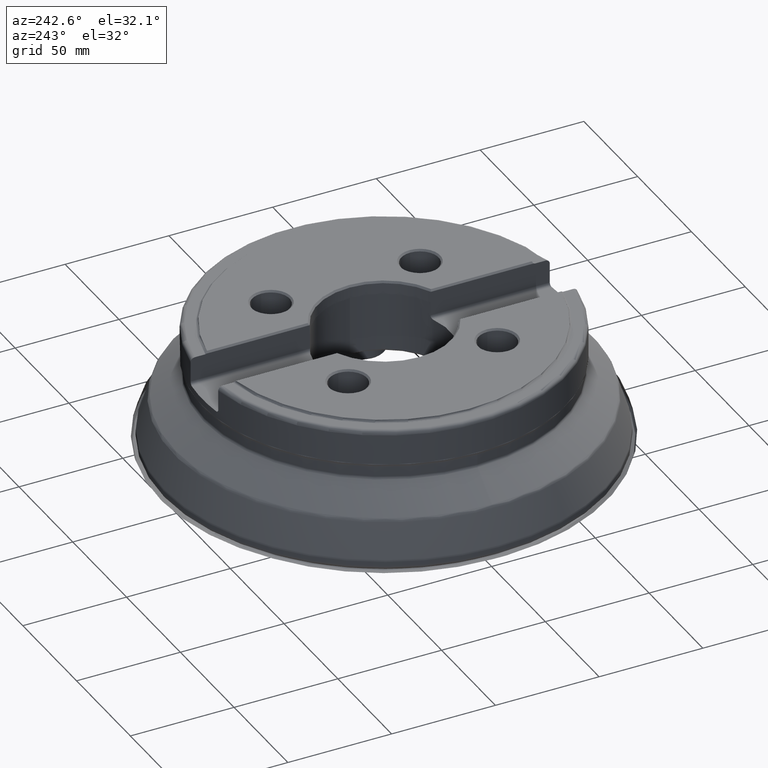
[diagram: clean part render]
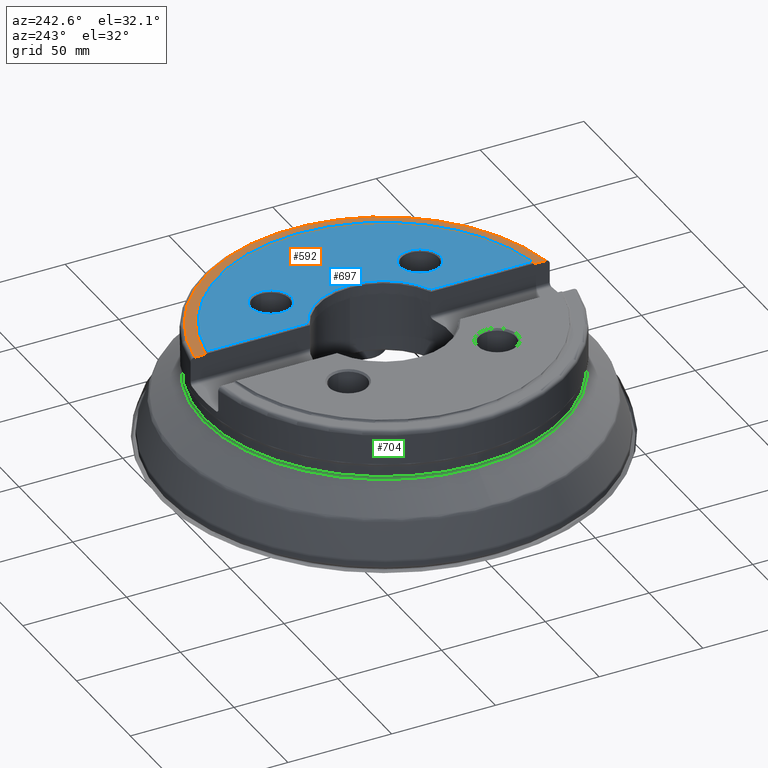
[diagram: same view with three faces highlighted in distinct colors, each labeled with its STEP entity id]
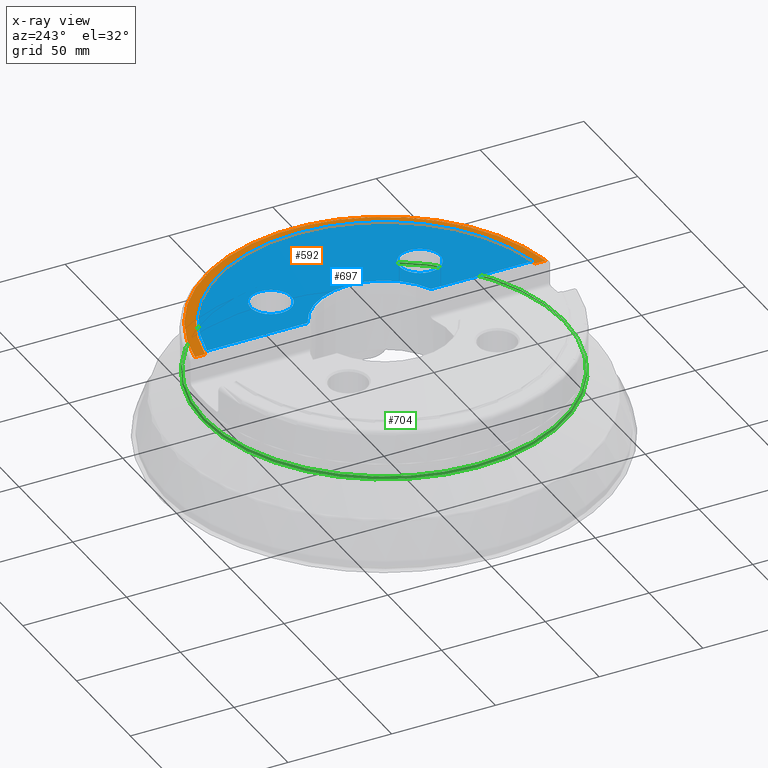
[diagram: x-ray of the same camera — body ghosted, the three highlighted faces saturated]
A machine part, auxiliary view with three faces highlighted in distinct colors.
The next image is the same camera in x-ray (body ghosted, the three faces saturated) — at least one of them is partly hidden behind the body in this view.
Their STEP definitions:

[orange] entity #592 — the highlighted planar face has unit normal (-0, 0, -1).
#241=PLANE('',#2642);
#276=FACE_OUTER_BOUND('',#948,.T.);
#370=LINE('',#3946,#478);
#372=LINE('',#3978,#480);
#478=VECTOR('',#2962,1.);
#480=VECTOR('',#2966,1.);
#592=ADVANCED_FACE('',(#276),#241,.F.);
#948=EDGE_LOOP('',(#1230,#1231,#1232,#1233));
#1230=ORIENTED_EDGE('',*,*,#2079,.T.);
#1231=ORIENTED_EDGE('',*,*,#2051,.T.);
#1232=ORIENTED_EDGE('',*,*,#2080,.T.);
#1233=ORIENTED_EDGE('',*,*,#2046,.T.);
#1827=VERTEX_POINT('',#3945);
#1828=VERTEX_POINT('',#3947);
#1832=VERTEX_POINT('',#3977);
#1833=VERTEX_POINT('',#3979);
#2046=EDGE_CURVE('',#1828,#1827,#370,.T.);
#2051=EDGE_CURVE('',#1833,#1832,#372,.T.);
#2079=EDGE_CURVE('',#1827,#1833,#2360,.T.);
#2080=EDGE_CURVE('',#1832,#1828,#2361,.T.);
#2360=CIRCLE('',#2640,85.5);
#2361=CIRCLE('',#2641,80.5);
#2640=AXIS2_PLACEMENT_3D('',#4124,#2998,#2999);
#2641=AXIS2_PLACEMENT_3D('',#4125,#3000,#3001);
#2642=AXIS2_PLACEMENT_3D('',#4126,#3002,#3003);
#2962=DIRECTION('',(0.,-1.,0.));
#2966=DIRECTION('',(0.,-1.,0.));
#2998=DIRECTION('',(1.17145536458252E-15,0.,1.));
#2999=DIRECTION('',(-1.,0.,1.13619315385615E-15));
#3000=DIRECTION('',(-1.17145536458252E-15,0.,-1.));
#3001=DIRECTION('',(-1.,0.,1.20676415720126E-15));
#3002=DIRECTION('',(-1.17145536458252E-15,0.,-1.));
#3003=DIRECTION('',(-1.,0.,1.16573417585641E-15));
#3945=CARTESIAN_POINT('',(12.8500000000001,-84.5288560197049,62.4999999999998));
#3946=CARTESIAN_POINT('',(12.8500000000001,-79.5,62.4999999999998));
#3947=CARTESIAN_POINT('',(12.8500000000001,-79.4677764883352,62.4999999999998));
#3977=CARTESIAN_POINT('',(12.8500000000001,79.467776488335,62.4999999999979));
#3978=CARTESIAN_POINT('',(12.8500000000001,-79.5,62.4999999999998));
#3979=CARTESIAN_POINT('',(12.8500000000001,84.5288560197049,62.4999999999998));
#4124=CARTESIAN_POINT('',(7.32159602864076E-14,0.,62.4999999999999));
#4125=CARTESIAN_POINT('',(7.32159602864076E-14,0.,62.4999999999999));
#4126=CARTESIAN_POINT('',(7.32159602864076E-14,-79.5,62.4999999999999));

[blue] entity #697 — the highlighted planar face has unit normal (0, 0, 1).
#264=PLANE('',#2878);
#472=LINE('',#4750,#580);
#473=LINE('',#4754,#581);
#580=VECTOR('',#3558,1.);
#581=VECTOR('',#3561,1.);
#697=ADVANCED_FACE('',(#841,#842,#843),#264,.T.);
#841=FACE_BOUND('',#1079,.T.);
#842=FACE_BOUND('',#1080,.T.);
#843=FACE_BOUND('',#1081,.T.);
#1079=EDGE_LOOP('',(#1688));
#1080=EDGE_LOOP('',(#1689));
#1081=EDGE_LOOP('',(#1690,#1691,#1692,#1693));
#1688=ORIENTED_EDGE('',*,*,#2307,.T.);
#1689=ORIENTED_EDGE('',*,*,#2308,.T.);
#1690=ORIENTED_EDGE('',*,*,#2083,.T.);
#1691=ORIENTED_EDGE('',*,*,#2309,.T.);
#1692=ORIENTED_EDGE('',*,*,#2310,.T.);
#1693=ORIENTED_EDGE('',*,*,#2311,.T.);
#1856=VERTEX_POINT('',#4139);
#1857=VERTEX_POINT('',#4141);
#1995=VERTEX_POINT('',#4747);
#1996=VERTEX_POINT('',#4749);
#1997=VERTEX_POINT('',#4751);
#1998=VERTEX_POINT('',#4753);
#2083=EDGE_CURVE('',#1857,#1856,#2363,.T.);
#2307=EDGE_CURVE('',#1995,#1995,#2490,.T.);
#2308=EDGE_CURVE('',#1996,#1996,#2491,.T.);
#2309=EDGE_CURVE('',#1856,#1997,#472,.T.);
#2310=EDGE_CURVE('',#1997,#1998,#2492,.T.);
#2311=EDGE_CURVE('',#1998,#1857,#473,.T.);
#2363=CIRCLE('',#2645,79.5);
#2490=CIRCLE('',#2875,9.8);
#2491=CIRCLE('',#2876,9.8);
#2492=CIRCLE('',#2877,32.7071155294151);
#2645=AXIS2_PLACEMENT_3D('',#4140,#3008,#3009);
#2875=AXIS2_PLACEMENT_3D('',#4746,#3554,#3555);
#2876=AXIS2_PLACEMENT_3D('',#4748,#3556,#3557);
#2877=AXIS2_PLACEMENT_3D('',#4752,#3559,#3560);
#2878=AXIS2_PLACEMENT_3D('',#4755,#3562,#3563);
#3008=DIRECTION('',(1.17145536458252E-15,0.,1.));
#3009=DIRECTION('',(-1.,0.,1.22194358056228E-15));
#3554=DIRECTION('',(-1.17145536458252E-15,0.,-1.));
#3555=DIRECTION('',(1.,0.,-1.41610079671576E-15));
#3556=DIRECTION('',(-1.17145536458252E-15,0.,-1.));
#3557=DIRECTION('',(1.,0.,-1.41610079671576E-15));
#3558=DIRECTION('',(0.,-1.,0.));
#3559=DIRECTION('',(-1.17145536458252E-15,0.,-1.));
#3560=DIRECTION('',(1.,0.,-1.27291455542756E-15));
#3561=DIRECTION('',(0.,-1.,0.));
#3562=DIRECTION('',(1.17145536458252E-15,0.,1.));
#3563=DIRECTION('',(1.,0.,-1.16573417585641E-15));
#4139=CARTESIAN_POINT('',(13.65,78.3193941498529,63.4999999999998));
#4140=CARTESIAN_POINT('',(7.43874156509901E-14,0.,63.4999999999999));
#4141=CARTESIAN_POINT('',(13.65,-78.3193941498529,63.4999999999998));
#4746=CARTESIAN_POINT('',(35.9210244842768,35.9210244842765,63.4999999999999));
#4747=CARTESIAN_POINT('',(45.7210244842768,35.9210244842765,63.4999999999999));
#4748=CARTESIAN_POINT('',(35.9210244842766,-35.9210244842767,63.4999999999999));
#4749=CARTESIAN_POINT('',(45.7210244842766,-35.9210244842767,63.4999999999999));
#4750=CARTESIAN_POINT('',(13.6500000000001,29.2051625814246,63.4999999999999));
#4751=CARTESIAN_POINT('',(13.6500000000001,29.722599251319,63.4999999999999));
#4752=CARTESIAN_POINT('',(7.43874156509902E-14,0.,63.4999999999999));
#4753=CARTESIAN_POINT('',(13.6500000000001,-29.722599251319,63.4999999999999));
#4754=CARTESIAN_POINT('',(13.6500000000001,-78.4546206414888,63.4999999999999));
#4755=CARTESIAN_POINT('',(46.1750000000001,0.,63.4999999999999));

[green] entity #704 — the highlighted toroidal blend (fillet) surface has major radius 88 mm and minor (blend) radius 1.5 mm.
#197=TOROIDAL_SURFACE('',#2887,88.,1.5);
#704=ADVANCED_FACE('',(#856,#857),#197,.F.);
#856=FACE_BOUND('',#1094,.T.);
#857=FACE_BOUND('',#1095,.T.);
#1094=EDGE_LOOP('',(#1706));
#1095=EDGE_LOOP('',(#1707));
#1706=ORIENTED_EDGE('',*,*,#2100,.F.);
#1707=ORIENTED_EDGE('',*,*,#2101,.F.);
#1868=VERTEX_POINT('',#4240);
#1869=VERTEX_POINT('',#4243);
#2100=EDGE_CURVE('',#1868,#1868,#2375,.T.);
#2101=EDGE_CURVE('',#1869,#1869,#2376,.T.);
#2375=CIRCLE('',#2662,86.5);
#2376=CIRCLE('',#2664,87.0289083060971);
#2662=AXIS2_PLACEMENT_3D('',#4239,#3042,#3043);
#2664=AXIS2_PLACEMENT_3D('',#4242,#3046,#3047);
#2887=AXIS2_PLACEMENT_3D('',#4766,#3580,#3581);
#3042=DIRECTION('',(1.17145536458252E-15,0.,1.));
#3043=DIRECTION('',(-1.,0.,1.20327639952148E-15));
#3046=DIRECTION('',(-1.17145536458252E-15,0.,-1.));
#3047=DIRECTION('',(-1.,0.,1.19596362386309E-15));
#3580=DIRECTION('',(-1.17145536458252E-15,0.,-1.));
#3581=DIRECTION('',(-1.,0.,1.16294311238669E-15));
#4239=CARTESIAN_POINT('',(4.59139795380046E-14,0.,39.1939641288571));
#4240=CARTESIAN_POINT('',(-86.5,0.,39.1939641288572));
#4242=CARTESIAN_POINT('',(4.45747335018224E-14,0.,38.0507314657334));
#4243=CARTESIAN_POINT('',(-87.0289083060971,0.,38.0507314657335));
#4766=CARTESIAN_POINT('',(4.59139795380046E-14,0.,39.1939641288571));